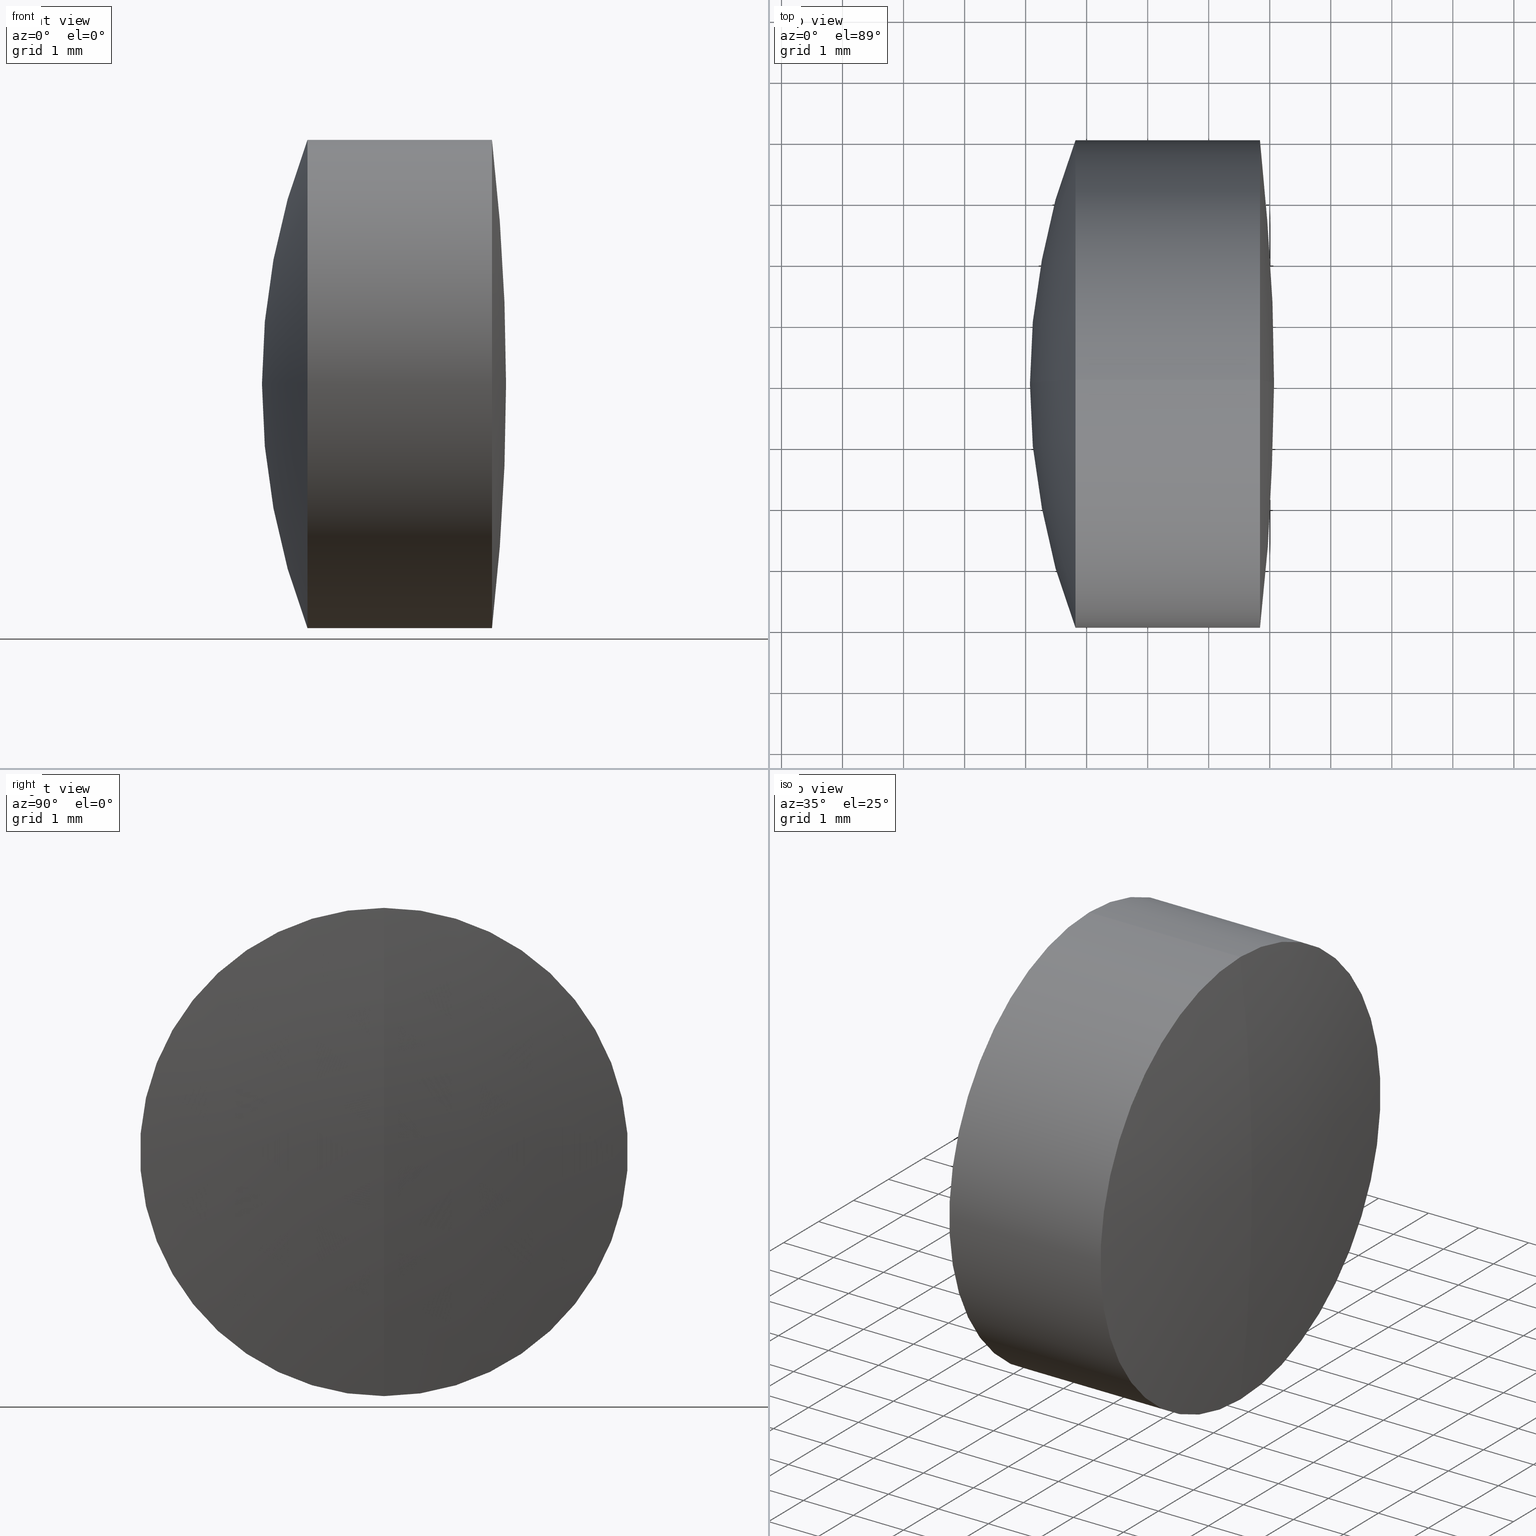
[diagram: canonical four-view strip — front | top / right | iso, engineering-drawing reading convention]
A machine part, canonical four-view strip (front | top / right | iso — engineering-drawing reading convention). The complete STEP part file that produces these views, byte-faithful:
ISO-10303-21;
HEADER;
FILE_DESCRIPTION (( 'STEP AP214' ),
    '1' );
FILE_NAME ('145017.STEP',
    '2019-05-08T09:01:55',
    ( 'user' ),
    ( '΢���й�' ),
    'SwSTEP 2.0',
    'SolidWorks 2016',
    '' );
FILE_SCHEMA (( 'AUTOMOTIVE_DESIGN' ));
ENDSEC;

DATA;
#1 = DIRECTION ( 'NONE',  ( 0.0000000000000000000, 0.0000000000000000000, 1.000000000000000000 ) ) ;
#2 = CARTESIAN_POINT ( 'NONE',  ( 1.655750400079075000, 4.898587196589417800E-016, -4.000000000000003600 ) ) ;
#3 = EDGE_LOOP ( 'NONE', ( #89, #278, #149, #163 ) ) ;
#4 = EDGE_CURVE ( 'NONE', #117, #208, #312, .T. ) ;
#5 = CARTESIAN_POINT ( 'NONE',  ( 11.17082432919588400, 0.0000000000000000000, 2.248175378683471300E-016 ) ) ;
#6 = VECTOR ( 'NONE', #219, 1000.000000000000000 ) ;
#7 = VERTEX_POINT ( 'NONE', #234 ) ;
#8 = SURFACE_STYLE_USAGE ( .BOTH. , #206 ) ;
#9 = DIRECTION ( 'NONE',  ( -0.0000000000000000000, 1.000000000000000000, 1.224646799147353200E-016 ) ) ;
#10 = SPHERICAL_SURFACE ( 'NONE', #315, 9.199999999999999300 ) ;
#11 = ADVANCED_FACE ( 'NONE', ( #316 ), #16, .T. ) ;
#12 = AXIS2_PLACEMENT_3D ( 'NONE', #250, #165, #190 ) ;
#13 = ORIENTED_EDGE ( 'NONE', *, *, #343, .T. ) ;
#14 = VERTEX_POINT ( 'NONE', #99 ) ;
#15 = CIRCLE ( 'NONE', #161, 11.10000000000000000 ) ;
#16 = SPHERICAL_SURFACE ( 'NONE', #303, 11.10000000000000000 ) ;
#17 = DIRECTION ( 'NONE',  ( 0.0000000000000000000, 0.0000000000000000000, 1.000000000000000000 ) ) ;
#18 = CIRCLE ( 'NONE', #174, 34.79999999999999700 ) ;
#19 = AXIS2_PLACEMENT_3D ( 'NONE', #67, #20, #252 ) ;
#20 = DIRECTION ( 'NONE',  ( -1.000000000000000000, -0.0000000000000000000, -0.0000000000000000000 ) ) ;
#21 = ORIENTED_EDGE ( 'NONE', *, *, #4, .F. ) ;
#22 = SURFACE_SIDE_STYLE ('',( #212 ) ) ;
#23 = EDGE_CURVE ( 'NONE', #208, #117, #199, .T. ) ;
#24 = FILL_AREA_STYLE_COLOUR ( '', #65 ) ;
#25 = ADVANCED_FACE ( 'NONE', ( #175 ), #105, .T. ) ;
#26 = APPLICATION_CONTEXT ( 'automotive_design' ) ;
#27 = DIRECTION ( 'NONE',  ( 0.0000000000000000000, 0.0000000000000000000, 1.000000000000000000 ) ) ;
#28 = ORIENTED_EDGE ( 'NONE', *, *, #153, .T. ) ;
#29 = CIRCLE ( 'NONE', #140, 4.000000000000000000 ) ;
#30 = UNCERTAINTY_MEASURE_WITH_UNIT (LENGTH_MEASURE( 1.000000000000000100E-005 ), #200, 'distance_accuracy_value', 'NONE');
#31 = VERTEX_POINT ( 'NONE', #144 ) ;
#32 = CARTESIAN_POINT ( 'NONE',  ( 3.840174916095840300, 4.898587196589413800E-016, -4.000000000000000000 ) ) ;
#33 = DIRECTION ( 'NONE',  ( 0.0000000000000000000, 1.000000000000000000, 0.0000000000000000000 ) ) ;
#34 = ORIENTED_EDGE ( 'NONE', *, *, #54, .T. ) ;
#35 = FACE_OUTER_BOUND ( 'NONE', #236, .T. ) ;
#36 = MECHANICAL_DESIGN_GEOMETRIC_PRESENTATION_REPRESENTATION (  '', ( #253 ), #247 ) ;
#37 =( LENGTH_UNIT ( ) NAMED_UNIT ( * ) SI_UNIT ( .MILLI., .METRE. ) );
#38 = CARTESIAN_POINT ( 'NONE',  ( -9.702612178336682500, 4.898587196589412800E-016, -4.000000000000000000 ) ) ;
#39 = AXIS2_PLACEMENT_3D ( 'NONE', #75, #233, #244 ) ;
#40 = CIRCLE ( 'NONE', #51, 4.000000000000000000 ) ;
#41 = FACE_OUTER_BOUND ( 'NONE', #214, .T. ) ;
#42 = EDGE_CURVE ( 'NONE', #269, #263, #266, .T. ) ;
#43 = SPHERICAL_SURFACE ( 'NONE', #276, 9.199999999999999300 ) ;
#44 = AXIS2_PLACEMENT_3D ( 'NONE', #198, #231, #88 ) ;
#45 = ADVANCED_FACE ( 'NONE', ( #35 ), #96, .T. ) ;
#46 = ORIENTED_EDGE ( 'NONE', *, *, #116, .T. ) ;
#47 = SPHERICAL_SURFACE ( 'NONE', #345, 9.199999999999999300 ) ;
#48 = UNCERTAINTY_MEASURE_WITH_UNIT (LENGTH_MEASURE( 1.000000000000000100E-005 ), #329, 'distance_accuracy_value', 'NONE');
#49 = CARTESIAN_POINT ( 'NONE',  ( 0.8165981388907876900, 0.0000000000000000000, 0.0000000000000000000 ) ) ;
#50 = EDGE_CURVE ( 'NONE', #14, #263, #249, .T. ) ;
#51 = AXIS2_PLACEMENT_3D ( 'NONE', #341, #291, #97 ) ;
#52 = CARTESIAN_POINT ( 'NONE',  ( 0.8165981388907876900, 0.0000000000000000000, -4.000000000000000000 ) ) ;
#53 = CIRCLE ( 'NONE', #87, 4.000000000000000900 ) ;
#54 = EDGE_CURVE ( 'NONE', #263, #135, #290, .T. ) ;
#55 = ORIENTED_EDGE ( 'NONE', *, *, #79, .T. ) ;
#56 = DIRECTION ( 'NONE',  ( 0.0000000000000000000, 1.000000000000000000, 0.0000000000000000000 ) ) ;
#57 = DIRECTION ( 'NONE',  ( -0.0000000000000000000, -1.000000000000000000, -0.0000000000000000000 ) ) ;
#58 = CIRCLE ( 'NONE', #259, 34.79999999999999700 ) ;
#59 = ORIENTED_EDGE ( 'NONE', *, *, #42, .F. ) ;
#60 = DIRECTION ( 'NONE',  ( 0.0000000000000000000, 0.0000000000000000000, -1.000000000000000000 ) ) ;
#61 = LINE ( 'NONE', #336, #122 ) ;
#62 = MANIFOLD_SOLID_BREP ( '��ת1', #164 ) ;
#63 = ORIENTED_EDGE ( 'NONE', *, *, #93, .T. ) ;
#64 = FILL_AREA_STYLE ('',( #172 ) ) ;
#65 = COLOUR_RGB ( '',1.000000000000000000, 1.000000000000000000, 1.000000000000000000 ) ;
#66 = CYLINDRICAL_SURFACE ( 'NONE', #44, 4.000000000000000900 ) ;
#67 = CARTESIAN_POINT ( 'NONE',  ( -9.702612178336682500, 0.0000000000000000000, 0.0000000000000000000 ) ) ;
#68 = FACE_OUTER_BOUND ( 'NONE', #204, .T. ) ;
#69 = AXIS2_PLACEMENT_3D ( 'NONE', #299, #133, #275 ) ;
#70 = ORIENTED_EDGE ( 'NONE', *, *, #93, .F. ) ;
#71 = CARTESIAN_POINT ( 'NONE',  ( 1.655750400079076800, 0.0000000000000000000, 4.000000000000000000 ) ) ;
#72 = AXIS2_PLACEMENT_3D ( 'NONE', #168, #56, #155 ) ;
#73 = DIRECTION ( 'NONE',  ( 0.0000000000000000000, 0.0000000000000000000, -1.000000000000000000 ) ) ;
#74 = DIRECTION ( 'NONE',  ( 0.0000000000000000000, 0.0000000000000000000, 1.000000000000000000 ) ) ;
#75 = CARTESIAN_POINT ( 'NONE',  ( 1.655750400079076800, 0.0000000000000000000, 0.0000000000000000000 ) ) ;
#76 = COLOUR_RGB ( '',1.000000000000000000, 1.000000000000000000, 1.000000000000000000 ) ;
#77 = CARTESIAN_POINT ( 'NONE',  ( -6.629175670804114500, 0.0000000000000000000, 1.127419418155393700E-016 ) ) ;
#78 = CARTESIAN_POINT ( 'NONE',  ( -0.5519199926577972300, 0.0000000000000000000, 4.000000000000000900 ) ) ;
#79 = EDGE_CURVE ( 'NONE', #14, #135, #218, .T. ) ;
#80 = DIRECTION ( 'NONE',  ( 0.0000000000000000000, 0.0000000000000000000, 1.000000000000000000 ) ) ;
#81 = DIRECTION ( 'NONE',  ( -1.000000000000000000, -0.0000000000000000000, -0.0000000000000000000 ) ) ;
#82 = ORIENTED_EDGE ( 'NONE', *, *, #201, .F. ) ;
#83 = CARTESIAN_POINT ( 'NONE',  ( 11.17082432919588400, 0.0000000000000000000, 2.248175378683471300E-016 ) ) ;
#84 = UNCERTAINTY_MEASURE_WITH_UNIT (LENGTH_MEASURE( 1.000000000000000100E-005 ), #194, 'distance_accuracy_value', 'NONE');
#85 = ADVANCED_FACE ( 'NONE', ( #68 ), #47, .T. ) ;
#86 = EDGE_CURVE ( 'NONE', #288, #208, #313, .T. ) ;
#87 = AXIS2_PLACEMENT_3D ( 'NONE', #49, #239, #256 ) ;
#88 = DIRECTION ( 'NONE',  ( 0.0000000000000000000, 0.0000000000000000000, 1.000000000000000000 ) ) ;
#89 = ORIENTED_EDGE ( 'NONE', *, *, #171, .F. ) ;
#90 =( NAMED_UNIT ( * ) PLANE_ANGLE_UNIT ( ) SI_UNIT ( $, .RADIAN. ) );
#91 = EDGE_CURVE ( 'NONE', #321, #7, #15, .T. ) ;
#92 = DIRECTION ( 'NONE',  ( 0.0000000000000000000, 0.0000000000000000000, 1.000000000000000000 ) ) ;
#93 = EDGE_CURVE ( 'NONE', #94, #321, #53, .T. ) ;
#94 = VERTEX_POINT ( 'NONE', #286 ) ;
#95 = DIRECTION ( 'NONE',  ( -1.000000000000000000, -0.0000000000000000000, -0.0000000000000000000 ) ) ;
#96 = CYLINDRICAL_SURFACE ( 'NONE', #145, 4.000000000000000900 ) ;
#97 = DIRECTION ( 'NONE',  ( 0.0000000000000000000, 0.0000000000000000000, 1.000000000000000000 ) ) ;
#98 = AXIS2_PLACEMENT_3D ( 'NONE', #106, #272, #295 ) ;
#99 = CARTESIAN_POINT ( 'NONE',  ( 2.570824329195885200, 0.0000000000000000000, 6.760794694233218000E-016 ) ) ;
#100 = CARTESIAN_POINT ( 'NONE',  ( -6.629175670804114500, 0.0000000000000000000, 1.127419418155393700E-016 ) ) ;
#101 = PRODUCT_DEFINITION_SHAPE ( 'NONE', 'NONE',  #196 ) ;
#102 = EDGE_CURVE ( 'NONE', #31, #269, #18, .T. ) ;
#103 = EDGE_LOOP ( 'NONE', ( #129, #332, #70, #344 ) ) ;
#104 = MECHANICAL_DESIGN_GEOMETRIC_PRESENTATION_REPRESENTATION (  '', ( #284 ), #292 ) ;
#105 = SPHERICAL_SURFACE ( 'NONE', #72, 34.79999999999999700 ) ;
#106 = CARTESIAN_POINT ( 'NONE',  ( -6.629175670804114500, 0.0000000000000000000, 1.127419418155393700E-016 ) ) ;
#107 = EDGE_CURVE ( 'NONE', #208, #321, #346, .T. ) ;
#108 = FILL_AREA_STYLE ('',( #160 ) ) ;
#109 = ADVANCED_FACE ( 'NONE', ( #335 ), #10, .T. ) ;
#110 = PRESENTATION_STYLE_ASSIGNMENT (( #311 ) ) ;
#111 = EDGE_LOOP ( 'NONE', ( #202, #55, #338 ) ) ;
#112 = CARTESIAN_POINT ( 'NONE',  ( 1.655750400079076800, 4.898587196589412800E-016, -4.000000000000000000 ) ) ;
#113 = ADVANCED_FACE ( 'NONE', ( #41 ), #258, .F. ) ;
#114 =( NAMED_UNIT ( * ) SI_UNIT ( $, .STERADIAN. ) SOLID_ANGLE_UNIT ( ) );
#115 = SURFACE_STYLE_FILL_AREA ( #108 ) ;
#116 = EDGE_CURVE ( 'NONE', #288, #117, #254, .T. ) ;
#117 = VERTEX_POINT ( 'NONE', #71 ) ;
#118 = DIRECTION ( 'NONE',  ( 0.0000000000000000000, -1.224646799147353200E-016, 1.000000000000000000 ) ) ;
#119 = PRESENTATION_STYLE_ASSIGNMENT (( #8 ) ) ;
#120 = ORIENTED_EDGE ( 'NONE', *, *, #246, .F. ) ;
#121 = AXIS2_PLACEMENT_3D ( 'NONE', #185, #347, #125 ) ;
#122 = VECTOR ( 'NONE', #191, 1000.000000000000000 ) ;
#123 = APPLICATION_PROTOCOL_DEFINITION ( 'draft international standard', 'automotive_design', 1998, #26 ) ;
#124 = ORIENTED_EDGE ( 'NONE', *, *, #102, .T. ) ;
#125 = DIRECTION ( 'NONE',  ( 0.0000000000000000000, 0.0000000000000000000, -1.000000000000000000 ) ) ;
#126 = CARTESIAN_POINT ( 'NONE',  ( 1.655750400079075000, 0.0000000000000000000, 0.0000000000000000000 ) ) ;
#127 = DIRECTION ( 'NONE',  ( -1.000000000000000000, -0.0000000000000000000, -0.0000000000000000000 ) ) ;
#128 = FACE_OUTER_BOUND ( 'NONE', #3, .T. ) ;
#129 = ORIENTED_EDGE ( 'NONE', *, *, #4, .T. ) ;
#130 = FACE_OUTER_BOUND ( 'NONE', #225, .T. ) ;
#131 = EDGE_CURVE ( 'NONE', #135, #263, #158, .T. ) ;
#132 = DIRECTION ( 'NONE',  ( 0.0000000000000000000, -1.000000000000000000, 0.0000000000000000000 ) ) ;
#133 = DIRECTION ( 'NONE',  ( 0.0000000000000000000, 1.000000000000000000, 0.0000000000000000000 ) ) ;
#134 = SHAPE_DEFINITION_REPRESENTATION ( #101, #306 ) ;
#135 = VERTEX_POINT ( 'NONE', #2 ) ;
#136 = PRODUCT_RELATED_PRODUCT_CATEGORY ( 'part', '', ( #243 ) ) ;
#137 = ADVANCED_FACE ( 'NONE', ( #130 ), #207, .T. ) ;
#138 = ORIENTED_EDGE ( 'NONE', *, *, #86, .T. ) ;
#139 = FACE_OUTER_BOUND ( 'NONE', #111, .T. ) ;
#140 = AXIS2_PLACEMENT_3D ( 'NONE', #305, #127, #297 ) ;
#141 = PRESENTATION_STYLE_ASSIGNMENT (( #224 ) ) ;
#142 = ORIENTED_EDGE ( 'NONE', *, *, #186, .T. ) ;
#143 = CARTESIAN_POINT ( 'NONE',  ( 11.17082432919588400, 0.0000000000000000000, 2.248175378683471300E-016 ) ) ;
#144 = CARTESIAN_POINT ( 'NONE',  ( 4.070824329195886500, 0.0000000000000000000, 2.130885430516394500E-015 ) ) ;
#145 = AXIS2_PLACEMENT_3D ( 'NONE', #235, #216, #27 ) ;
#146 = FACE_OUTER_BOUND ( 'NONE', #261, .T. ) ;
#147 = SURFACE_SIDE_STYLE ('',( #262 ) ) ;
#148 =( NAMED_UNIT ( * ) SI_UNIT ( $, .STERADIAN. ) SOLID_ANGLE_UNIT ( ) );
#149 = ORIENTED_EDGE ( 'NONE', *, *, #42, .T. ) ;
#150 = UNCERTAINTY_MEASURE_WITH_UNIT (LENGTH_MEASURE( 1.000000000000000100E-005 ), #37, 'distance_accuracy_value', 'NONE');
#151 = DIRECTION ( 'NONE',  ( 0.0000000000000000000, 0.0000000000000000000, -1.000000000000000000 ) ) ;
#152 = CARTESIAN_POINT ( 'NONE',  ( 0.0000000000000000000, 0.0000000000000000000, 0.0000000000000000000 ) ) ;
#153 = EDGE_CURVE ( 'NONE', #117, #94, #61, .T. ) ;
#154 = PRODUCT_CONTEXT ( 'NONE', #240, 'mechanical' ) ;
#155 = DIRECTION ( 'NONE',  ( 0.0000000000000000000, 0.0000000000000000000, 1.000000000000000000 ) ) ;
#156 = DIRECTION ( 'NONE',  ( 0.0000000000000000000, 1.000000000000000000, -0.0000000000000000000 ) ) ;
#157 = DIRECTION ( 'NONE',  ( 0.0000000000000000000, 0.0000000000000000000, 1.000000000000000000 ) ) ;
#158 = CIRCLE ( 'NONE', #326, 4.000000000000001800 ) ;
#159 = AXIS2_PLACEMENT_3D ( 'NONE', #126, #334, #80 ) ;
#160 = FILL_AREA_STYLE_COLOUR ( '', #270 ) ;
#161 = AXIS2_PLACEMENT_3D ( 'NONE', #5, #156, #215 ) ;
#162 = CIRCLE ( 'NONE', #210, 11.10000000000000000 ) ;
#163 = ORIENTED_EDGE ( 'NONE', *, *, #131, .F. ) ;
#164 = CLOSED_SHELL ( 'NONE', ( #85, #228, #11, #137, #167, #109 ) ) ;
#165 = DIRECTION ( 'NONE',  ( -1.000000000000000000, -0.0000000000000000000, -0.0000000000000000000 ) ) ;
#166 = PRODUCT_DEFINITION_FORMATION_WITH_SPECIFIED_SOURCE ( '�κ�', '', #243, .NOT_KNOWN. ) ;
#167 = ADVANCED_FACE ( 'NONE', ( #146 ), #285, .T. ) ;
#168 = CARTESIAN_POINT ( 'NONE',  ( -30.72917567080411100, 0.0000000000000000000, 0.0000000000000000000 ) ) ;
#169 =( NAMED_UNIT ( * ) SI_UNIT ( $, .STERADIAN. ) SOLID_ANGLE_UNIT ( ) );
#170 = CARTESIAN_POINT ( 'NONE',  ( -6.629175670804114500, 0.0000000000000000000, 1.127419418155393700E-016 ) ) ;
#171 = EDGE_CURVE ( 'NONE', #257, #135, #330, .T. ) ;
#172 = FILL_AREA_STYLE_COLOUR ( '', #76 ) ;
#173 = ORIENTED_EDGE ( 'NONE', *, *, #246, .T. ) ;
#174 = AXIS2_PLACEMENT_3D ( 'NONE', #342, #132, #60 ) ;
#175 = FACE_OUTER_BOUND ( 'NONE', #324, .T. ) ;
#176 = CARTESIAN_POINT ( 'NONE',  ( -6.629175670804114500, 0.0000000000000000000, 1.127419418155393700E-016 ) ) ;
#177 = DIRECTION ( 'NONE',  ( 0.0000000000000000000, -1.224646799147353200E-016, 1.000000000000000000 ) ) ;
#178 = DIRECTION ( 'NONE',  ( -0.0000000000000000000, -1.000000000000000000, -0.0000000000000000000 ) ) ;
#179 = FILL_AREA_STYLE ('',( #24 ) ) ;
#180 = AXIS2_PLACEMENT_3D ( 'NONE', #152, #209, #211 ) ;
#181 = DIRECTION ( 'NONE',  ( 0.0000000000000000000, 0.0000000000000000000, 1.000000000000000000 ) ) ;
#182 = SPHERICAL_SURFACE ( 'NONE', #69, 34.79999999999999700 ) ;
#183 = EDGE_LOOP ( 'NONE', ( #217, #13, #302 ) ) ;
#184 = CARTESIAN_POINT ( 'NONE',  ( 11.17082432919588400, 0.0000000000000000000, 2.248175378683471300E-016 ) ) ;
#185 = CARTESIAN_POINT ( 'NONE',  ( -6.629175670804114500, 0.0000000000000000000, 1.127419418155393700E-016 ) ) ;
#186 = EDGE_CURVE ( 'NONE', #269, #257, #29, .T. ) ;
#187 =( GEOMETRIC_REPRESENTATION_CONTEXT ( 3 ) GLOBAL_UNCERTAINTY_ASSIGNED_CONTEXT ( ( #48 ) ) GLOBAL_UNIT_ASSIGNED_CONTEXT ( ( #329, #90, #114 ) ) REPRESENTATION_CONTEXT ( 'NONE', 'WORKASPACE' ) );
#188 = ORIENTED_EDGE ( 'NONE', *, *, #23, .T. ) ;
#189 = CIRCLE ( 'NONE', #205, 4.000000000000000900 ) ;
#190 = DIRECTION ( 'NONE',  ( 0.0000000000000000000, 0.0000000000000000000, 1.000000000000000000 ) ) ;
#191 = DIRECTION ( 'NONE',  ( -1.000000000000000000, -0.0000000000000000000, -0.0000000000000000000 ) ) ;
#192 = DIRECTION ( 'NONE',  ( 0.0000000000000000000, -1.224646799147353200E-016, 1.000000000000000000 ) ) ;
#193 = ORIENTED_EDGE ( 'NONE', *, *, #186, .F. ) ;
#194 =( LENGTH_UNIT ( ) NAMED_UNIT ( * ) SI_UNIT ( .MILLI., .METRE. ) );
#195 = CARTESIAN_POINT ( 'NONE',  ( 1.655750400079075000, 0.0000000000000000000, 0.0000000000000000000 ) ) ;
#196 = PRODUCT_DEFINITION ( 'δ֪', '', #166, #260 ) ;
#197 = ORIENTED_EDGE ( 'NONE', *, *, #116, .F. ) ;
#198 = CARTESIAN_POINT ( 'NONE',  ( -0.5519199926577972300, 0.0000000000000000000, 0.0000000000000000000 ) ) ;
#199 = CIRCLE ( 'NONE', #12, 4.000000000000000000 ) ;
#200 =( LENGTH_UNIT ( ) NAMED_UNIT ( * ) SI_UNIT ( .MILLI., .METRE. ) );
#201 = EDGE_CURVE ( 'NONE', #321, #94, #189, .T. ) ;
#202 = ORIENTED_EDGE ( 'NONE', *, *, #50, .F. ) ;
#203 = EDGE_LOOP ( 'NONE', ( #232, #46, #340 ) ) ;
#204 = EDGE_LOOP ( 'NONE', ( #197, #138, #21 ) ) ;
#205 = AXIS2_PLACEMENT_3D ( 'NONE', #238, #241, #157 ) ;
#206 = SURFACE_SIDE_STYLE ('',( #115 ) ) ;
#207 = SPHERICAL_SURFACE ( 'NONE', #237, 11.10000000000000000 ) ;
#208 = VERTEX_POINT ( 'NONE', #112 ) ;
#209 = DIRECTION ( 'NONE',  ( 0.0000000000000000000, 0.0000000000000000000, 1.000000000000000000 ) ) ;
#210 = AXIS2_PLACEMENT_3D ( 'NONE', #83, #251, #287 ) ;
#211 = DIRECTION ( 'NONE',  ( 1.000000000000000000, 0.0000000000000000000, 0.0000000000000000000 ) ) ;
#212 = SURFACE_STYLE_FILL_AREA ( #64 ) ;
#213 = ORIENTED_EDGE ( 'NONE', *, *, #171, .T. ) ;
#214 = EDGE_LOOP ( 'NONE', ( #248, #282, #34 ) ) ;
#215 = DIRECTION ( 'NONE',  ( 0.0000000000000000000, 0.0000000000000000000, 1.000000000000000000 ) ) ;
#216 = DIRECTION ( 'NONE',  ( -1.000000000000000000, -0.0000000000000000000, -0.0000000000000000000 ) ) ;
#217 = ORIENTED_EDGE ( 'NONE', *, *, #201, .T. ) ;
#218 = CIRCLE ( 'NONE', #304, 9.199999999999999300 ) ;
#219 = DIRECTION ( 'NONE',  ( -1.000000000000000000, -0.0000000000000000000, -0.0000000000000000000 ) ) ;
#220 = CARTESIAN_POINT ( 'NONE',  ( -30.72917567080411100, 0.0000000000000000000, 0.0000000000000000000 ) ) ;
#221 = ADVANCED_FACE ( 'NONE', ( #139 ), #43, .F. ) ;
#222 = DIRECTION ( 'NONE',  ( -0.0000000000000000000, 1.000000000000000000, 1.224646799147353200E-016 ) ) ;
#223 = CLOSED_SHELL ( 'NONE', ( #277, #45, #221, #113, #317, #25 ) ) ;
#224 = SURFACE_STYLE_USAGE ( .BOTH. , #22 ) ;
#225 = EDGE_LOOP ( 'NONE', ( #281, #63, #273 ) ) ;
#226 = MECHANICAL_DESIGN_GEOMETRIC_PRESENTATION_REPRESENTATION (  '', ( #333 ), #187 ) ;
#227 = MANIFOLD_SOLID_BREP ( '��ת3', #223 ) ;
#228 = ADVANCED_FACE ( 'NONE', ( #245 ), #320, .T. ) ;
#229 = EDGE_CURVE ( 'NONE', #257, #269, #40, .T. ) ;
#230 = PRESENTATION_LAYER_ASSIGNMENT (  '', '', ( #253 ) ) ;
#231 = DIRECTION ( 'NONE',  ( -1.000000000000000000, -0.0000000000000000000, -0.0000000000000000000 ) ) ;
#232 = ORIENTED_EDGE ( 'NONE', *, *, #86, .F. ) ;
#233 = DIRECTION ( 'NONE',  ( -1.000000000000000000, -0.0000000000000000000, -0.0000000000000000000 ) ) ;
#234 = CARTESIAN_POINT ( 'NONE',  ( 0.07082432919588467500, 0.0000000000000000000, -4.548614356584338900E-016 ) ) ;
#235 = CARTESIAN_POINT ( 'NONE',  ( -0.5519199926577972300, 0.0000000000000000000, 0.0000000000000000000 ) ) ;
#236 = EDGE_LOOP ( 'NONE', ( #142, #213, #308, #59 ) ) ;
#237 = AXIS2_PLACEMENT_3D ( 'NONE', #143, #178, #151 ) ;
#238 = CARTESIAN_POINT ( 'NONE',  ( 0.8165981388907876900, 0.0000000000000000000, 0.0000000000000000000 ) ) ;
#239 = DIRECTION ( 'NONE',  ( -1.000000000000000000, -0.0000000000000000000, -0.0000000000000000000 ) ) ;
#240 = APPLICATION_CONTEXT ( 'automotive_design' ) ;
#241 = DIRECTION ( 'NONE',  ( -1.000000000000000000, -0.0000000000000000000, -0.0000000000000000000 ) ) ;
#242 = ORIENTED_EDGE ( 'NONE', *, *, #229, .F. ) ;
#243 = PRODUCT ( '145017', '145017', '', ( #154 ) ) ;
#244 = DIRECTION ( 'NONE',  ( 0.0000000000000000000, 0.0000000000000000000, 1.000000000000000000 ) ) ;
#245 = FACE_OUTER_BOUND ( 'NONE', #103, .T. ) ;
#246 = EDGE_CURVE ( 'NONE', #31, #257, #58, .T. ) ;
#247 =( GEOMETRIC_REPRESENTATION_CONTEXT ( 3 ) GLOBAL_UNCERTAINTY_ASSIGNED_CONTEXT ( ( #30 ) ) GLOBAL_UNIT_ASSIGNED_CONTEXT ( ( #200, #293, #169 ) ) REPRESENTATION_CONTEXT ( 'NONE', 'WORKASPACE' ) );
#248 = ORIENTED_EDGE ( 'NONE', *, *, #79, .F. ) ;
#249 = CIRCLE ( 'NONE', #98, 9.199999999999999300 ) ;
#250 = CARTESIAN_POINT ( 'NONE',  ( 1.655750400079076800, 0.0000000000000000000, 0.0000000000000000000 ) ) ;
#251 = DIRECTION ( 'NONE',  ( 0.0000000000000000000, -1.000000000000000000, -1.224646799147353200E-016 ) ) ;
#252 = DIRECTION ( 'NONE',  ( 0.0000000000000000000, 0.0000000000000000000, 1.000000000000000000 ) ) ;
#253 = STYLED_ITEM ( 'NONE', ( #110 ), #62 ) ;
#254 = CIRCLE ( 'NONE', #121, 9.199999999999999300 ) ;
#255 = FACE_OUTER_BOUND ( 'NONE', #307, .T. ) ;
#256 = DIRECTION ( 'NONE',  ( 0.0000000000000000000, 0.0000000000000000000, 1.000000000000000000 ) ) ;
#257 = VERTEX_POINT ( 'NONE', #32 ) ;
#258 = SPHERICAL_SURFACE ( 'NONE', #309, 9.199999999999999300 ) ;
#259 = AXIS2_PLACEMENT_3D ( 'NONE', #220, #289, #177 ) ;
#260 = PRODUCT_DEFINITION_CONTEXT ( 'detailed design', #26, 'design' ) ;
#261 = EDGE_LOOP ( 'NONE', ( #274, #188, #28, #82 ) ) ;
#262 = SURFACE_STYLE_FILL_AREA ( #179 ) ;
#263 = VERTEX_POINT ( 'NONE', #294 ) ;
#264 = PRESENTATION_LAYER_ASSIGNMENT (  '', '', ( #333 ) ) ;
#265 = DIRECTION ( 'NONE',  ( 0.0000000000000000000, 1.000000000000000000, 0.0000000000000000000 ) ) ;
#266 = LINE ( 'NONE', #78, #322 ) ;
#267 = DIRECTION ( 'NONE',  ( 0.0000000000000000000, 1.000000000000000000, 0.0000000000000000000 ) ) ;
#268 = APPLICATION_PROTOCOL_DEFINITION ( 'draft international standard', 'automotive_design', 1998, #240 ) ;
#269 = VERTEX_POINT ( 'NONE', #339 ) ;
#270 = COLOUR_RGB ( '',1.000000000000000000, 1.000000000000000000, 1.000000000000000000 ) ;
#271 = AXIS2_PLACEMENT_3D ( 'NONE', #301, #314, #325 ) ;
#272 = DIRECTION ( 'NONE',  ( 0.0000000000000000000, -1.000000000000000000, 0.0000000000000000000 ) ) ;
#273 = ORIENTED_EDGE ( 'NONE', *, *, #91, .T. ) ;
#274 = ORIENTED_EDGE ( 'NONE', *, *, #107, .F. ) ;
#275 = DIRECTION ( 'NONE',  ( 0.0000000000000000000, 0.0000000000000000000, 1.000000000000000000 ) ) ;
#276 = AXIS2_PLACEMENT_3D ( 'NONE', #323, #265, #1 ) ;
#277 = ADVANCED_FACE ( 'NONE', ( #255 ), #182, .T. ) ;
#278 = ORIENTED_EDGE ( 'NONE', *, *, #229, .T. ) ;
#279 =( NAMED_UNIT ( * ) PLANE_ANGLE_UNIT ( ) SI_UNIT ( $, .RADIAN. ) );
#280 = PRESENTATION_LAYER_ASSIGNMENT (  '', '', ( #284 ) ) ;
#281 = ORIENTED_EDGE ( 'NONE', *, *, #343, .F. ) ;
#282 = ORIENTED_EDGE ( 'NONE', *, *, #50, .T. ) ;
#283 =( NAMED_UNIT ( * ) PLANE_ANGLE_UNIT ( ) SI_UNIT ( $, .RADIAN. ) );
#284 = STYLED_ITEM ( 'NONE', ( #119 ), #227 ) ;
#285 = CYLINDRICAL_SURFACE ( 'NONE', #271, 4.000000000000000000 ) ;
#286 = CARTESIAN_POINT ( 'NONE',  ( 0.8165981388907876900, -4.898587196589412800E-016, 4.000000000000000000 ) ) ;
#287 = DIRECTION ( 'NONE',  ( 0.0000000000000000000, 1.224646799147353500E-016, -1.000000000000000000 ) ) ;
#288 = VERTEX_POINT ( 'NONE', #331 ) ;
#289 = DIRECTION ( 'NONE',  ( -0.0000000000000000000, 1.000000000000000000, 1.224646799147353200E-016 ) ) ;
#290 = CIRCLE ( 'NONE', #159, 4.000000000000001800 ) ;
#291 = DIRECTION ( 'NONE',  ( -1.000000000000000000, -0.0000000000000000000, -0.0000000000000000000 ) ) ;
#292 =( GEOMETRIC_REPRESENTATION_CONTEXT ( 3 ) GLOBAL_UNCERTAINTY_ASSIGNED_CONTEXT ( ( #84 ) ) GLOBAL_UNIT_ASSIGNED_CONTEXT ( ( #194, #283, #318 ) ) REPRESENTATION_CONTEXT ( 'NONE', 'WORKASPACE' ) );
#293 =( NAMED_UNIT ( * ) PLANE_ANGLE_UNIT ( ) SI_UNIT ( $, .RADIAN. ) );
#294 = CARTESIAN_POINT ( 'NONE',  ( 1.655750400079075000, 0.0000000000000000000, 4.000000000000003600 ) ) ;
#295 = DIRECTION ( 'NONE',  ( 0.0000000000000000000, 0.0000000000000000000, -1.000000000000000000 ) ) ;
#296 = CARTESIAN_POINT ( 'NONE',  ( -6.629175670804114500, 0.0000000000000000000, 1.127419418155393700E-016 ) ) ;
#297 = DIRECTION ( 'NONE',  ( 0.0000000000000000000, 0.0000000000000000000, 1.000000000000000000 ) ) ;
#298 = AXIS2_PLACEMENT_3D ( 'NONE', #100, #222, #118 ) ;
#299 = CARTESIAN_POINT ( 'NONE',  ( -30.72917567080411100, 0.0000000000000000000, 0.0000000000000000000 ) ) ;
#300 = DIRECTION ( 'NONE',  ( 0.0000000000000000000, 1.000000000000000000, 0.0000000000000000000 ) ) ;
#301 = CARTESIAN_POINT ( 'NONE',  ( -9.702612178336682500, 0.0000000000000000000, 0.0000000000000000000 ) ) ;
#302 = ORIENTED_EDGE ( 'NONE', *, *, #91, .F. ) ;
#303 = AXIS2_PLACEMENT_3D ( 'NONE', #184, #57, #73 ) ;
#304 = AXIS2_PLACEMENT_3D ( 'NONE', #296, #9, #192 ) ;
#305 = CARTESIAN_POINT ( 'NONE',  ( 3.840174916095840300, 0.0000000000000000000, 0.0000000000000000000 ) ) ;
#306 = ADVANCED_BREP_SHAPE_REPRESENTATION ( '145017', ( #62, #227, #180 ), #319 ) ;
#307 = EDGE_LOOP ( 'NONE', ( #327, #173, #193 ) ) ;
#308 = ORIENTED_EDGE ( 'NONE', *, *, #54, .F. ) ;
#309 = AXIS2_PLACEMENT_3D ( 'NONE', #170, #33, #74 ) ;
#310 = CARTESIAN_POINT ( 'NONE',  ( -0.5519199926577972300, 4.898587196589413800E-016, -4.000000000000000900 ) ) ;
#311 = SURFACE_STYLE_USAGE ( .BOTH. , #147 ) ;
#312 = CIRCLE ( 'NONE', #39, 4.000000000000000000 ) ;
#313 = CIRCLE ( 'NONE', #298, 9.199999999999999300 ) ;
#314 = DIRECTION ( 'NONE',  ( -1.000000000000000000, -0.0000000000000000000, -0.0000000000000000000 ) ) ;
#315 = AXIS2_PLACEMENT_3D ( 'NONE', #77, #267, #181 ) ;
#316 = FACE_OUTER_BOUND ( 'NONE', #183, .T. ) ;
#317 = ADVANCED_FACE ( 'NONE', ( #128 ), #66, .T. ) ;
#318 =( NAMED_UNIT ( * ) SI_UNIT ( $, .STERADIAN. ) SOLID_ANGLE_UNIT ( ) );
#319 =( GEOMETRIC_REPRESENTATION_CONTEXT ( 3 ) GLOBAL_UNCERTAINTY_ASSIGNED_CONTEXT ( ( #150 ) ) GLOBAL_UNIT_ASSIGNED_CONTEXT ( ( #37, #279, #148 ) ) REPRESENTATION_CONTEXT ( 'NONE', 'WORKASPACE' ) );
#320 = CYLINDRICAL_SURFACE ( 'NONE', #19, 4.000000000000000000 ) ;
#321 = VERTEX_POINT ( 'NONE', #52 ) ;
#322 = VECTOR ( 'NONE', #328, 1000.000000000000000 ) ;
#323 = CARTESIAN_POINT ( 'NONE',  ( -6.629175670804114500, 0.0000000000000000000, 1.127419418155393700E-016 ) ) ;
#324 = EDGE_LOOP ( 'NONE', ( #120, #124, #242 ) ) ;
#325 = DIRECTION ( 'NONE',  ( 0.0000000000000000000, 0.0000000000000000000, 1.000000000000000000 ) ) ;
#326 = AXIS2_PLACEMENT_3D ( 'NONE', #195, #95, #17 ) ;
#327 = ORIENTED_EDGE ( 'NONE', *, *, #102, .F. ) ;
#328 = DIRECTION ( 'NONE',  ( -1.000000000000000000, -0.0000000000000000000, -0.0000000000000000000 ) ) ;
#329 =( LENGTH_UNIT ( ) NAMED_UNIT ( * ) SI_UNIT ( .MILLI., .METRE. ) );
#330 = LINE ( 'NONE', #310, #337 ) ;
#331 = CARTESIAN_POINT ( 'NONE',  ( 2.570824329195885200, 0.0000000000000000000, 6.760794694233218000E-016 ) ) ;
#332 = ORIENTED_EDGE ( 'NONE', *, *, #107, .T. ) ;
#333 = STYLED_ITEM ( 'NONE', ( #141 ), #306 ) ;
#334 = DIRECTION ( 'NONE',  ( -1.000000000000000000, -0.0000000000000000000, -0.0000000000000000000 ) ) ;
#335 = FACE_OUTER_BOUND ( 'NONE', #203, .T. ) ;
#336 = CARTESIAN_POINT ( 'NONE',  ( -9.702612178336682500, 0.0000000000000000000, 4.000000000000000000 ) ) ;
#337 = VECTOR ( 'NONE', #81, 1000.000000000000000 ) ;
#338 = ORIENTED_EDGE ( 'NONE', *, *, #131, .T. ) ;
#339 = CARTESIAN_POINT ( 'NONE',  ( 3.840174916095840300, 0.0000000000000000000, 4.000000000000000000 ) ) ;
#340 = ORIENTED_EDGE ( 'NONE', *, *, #23, .F. ) ;
#341 = CARTESIAN_POINT ( 'NONE',  ( 3.840174916095840300, 0.0000000000000000000, 0.0000000000000000000 ) ) ;
#342 = CARTESIAN_POINT ( 'NONE',  ( -30.72917567080411100, 0.0000000000000000000, 0.0000000000000000000 ) ) ;
#343 = EDGE_CURVE ( 'NONE', #94, #7, #162, .T. ) ;
#344 = ORIENTED_EDGE ( 'NONE', *, *, #153, .F. ) ;
#345 = AXIS2_PLACEMENT_3D ( 'NONE', #176, #300, #92 ) ;
#346 = LINE ( 'NONE', #38, #6 ) ;
#347 = DIRECTION ( 'NONE',  ( 0.0000000000000000000, -1.000000000000000000, 0.0000000000000000000 ) ) ;
ENDSEC;
END-ISO-10303-21;
